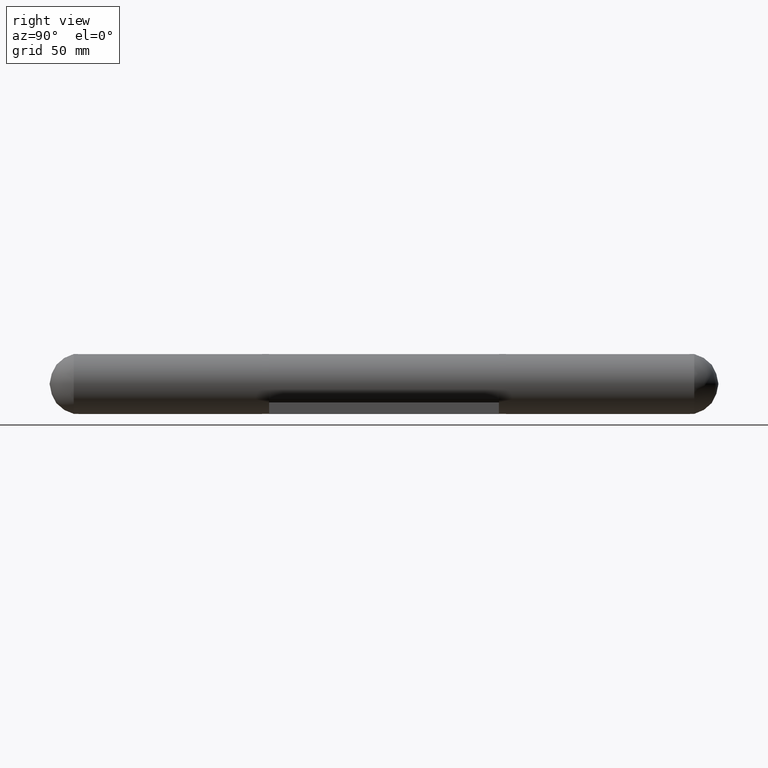
[diagram: clean part render]
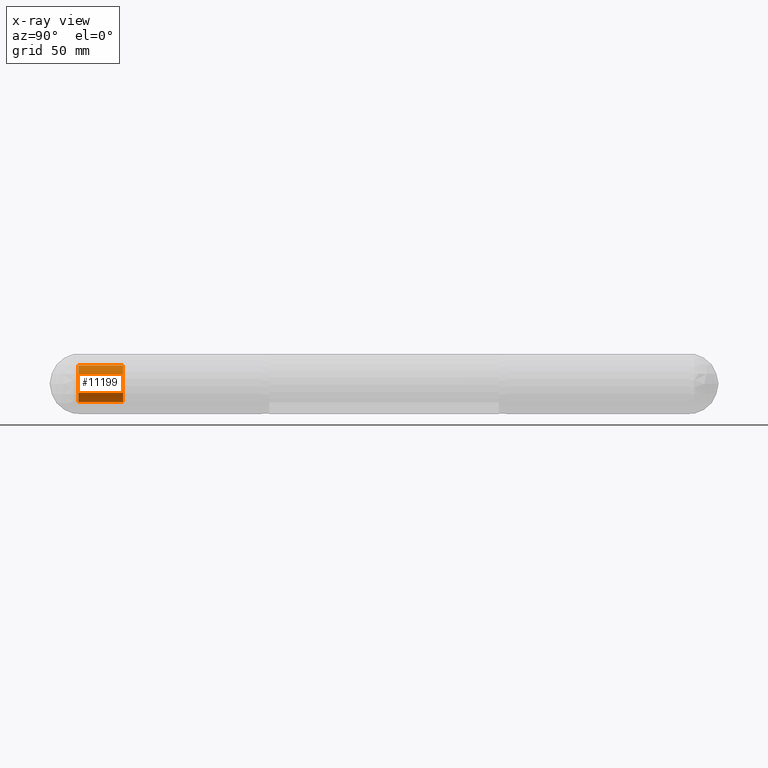
[diagram: x-ray — body ghosted, one internal face saturated and labeled with its STEP entity id]
A machine part, right view, then the same camera in x-ray: the body is ghosted and one INTERNAL B-rep face — a face not visible from any outside direction — is saturated and labeled: STEP entity #11199.
In plain terms, the highlighted cylindrical surface (bore or boss wall) has radius 8 mm, axis along (0, 1, -0).
Its self-contained STEP definition (entity closure, byte-faithful):
#200 = CARTESIAN_POINT ( 'NONE',  ( 0.000000000000000000, -16.25000000000000000, 0.000000000000000000 ) ) ;
#623 = CYLINDRICAL_SURFACE ( 'NONE', #8424, 8.000000000000000000 ) ;
#1455 = ORIENTED_EDGE ( 'NONE', *, *, #6252, .T. ) ;
#1798 = DIRECTION ( 'NONE',  ( 0.000000000000000000, 1.000000000000000000, 0.000000000000000000 ) ) ;
#1856 = CARTESIAN_POINT ( 'NONE',  ( 0.000000000000000000, 3.750000000000000000, 0.000000000000000000 ) ) ;
#2078 = ORIENTED_EDGE ( 'NONE', *, *, #3896, .T. ) ;
#3712 = DIRECTION ( 'NONE',  ( -0.000000000000000000, -1.000000000000000000, -0.000000000000000000 ) ) ;
#3817 = DIRECTION ( 'NONE',  ( 0.000000000000000000, 0.000000000000000000, -1.000000000000000000 ) ) ;
#3896 = EDGE_CURVE ( 'NONE', #9711, #9711, #7736, .T. ) ;
#3917 = FACE_OUTER_BOUND ( 'NONE', #12215, .T. ) ;
#4255 = AXIS2_PLACEMENT_3D ( 'NONE', #1856, #3712, #7769 ) ;
#4444 = CIRCLE ( 'NONE', #7225, 8.000000000000000000 ) ;
#4527 = VERTEX_POINT ( 'NONE', #12943 ) ;
#4922 = EDGE_LOOP ( 'NONE', ( #2078 ) ) ;
#6252 = EDGE_CURVE ( 'NONE', #4527, #4527, #4444, .T. ) ;
#6778 = CARTESIAN_POINT ( 'NONE',  ( 0.000000000000000000, -15.75000000000000711, 0.000000000000000000 ) ) ;
#7225 = AXIS2_PLACEMENT_3D ( 'NONE', #6778, #1798, #3817 ) ;
#7736 = CIRCLE ( 'NONE', #4255, 8.000000000000000000 ) ;
#7769 = DIRECTION ( 'NONE',  ( 0.000000000000000000, 0.000000000000000000, -1.000000000000000000 ) ) ;
#8424 = AXIS2_PLACEMENT_3D ( 'NONE', #200, #9204, #12106 ) ;
#8791 = FACE_OUTER_BOUND ( 'NONE', #4922, .T. ) ;
#9204 = DIRECTION ( 'NONE',  ( -0.000000000000000000, -1.000000000000000000, -0.000000000000000000 ) ) ;
#9711 = VERTEX_POINT ( 'NONE', #12979 ) ;
#11199 = ADVANCED_FACE ( 'NONE', ( #3917, #8791 ), #623, .T. ) ;
#12106 = DIRECTION ( 'NONE',  ( 0.000000000000000000, 0.000000000000000000, -1.000000000000000000 ) ) ;
#12215 = EDGE_LOOP ( 'NONE', ( #1455 ) ) ;
#12943 = CARTESIAN_POINT ( 'NONE',  ( 0.000000000000000000, -15.75000000000000711, -8.000000000000000000 ) ) ;
#12979 = CARTESIAN_POINT ( 'NONE',  ( 0.000000000000000000, 3.750000000000000000, -8.000000000000000000 ) ) ;